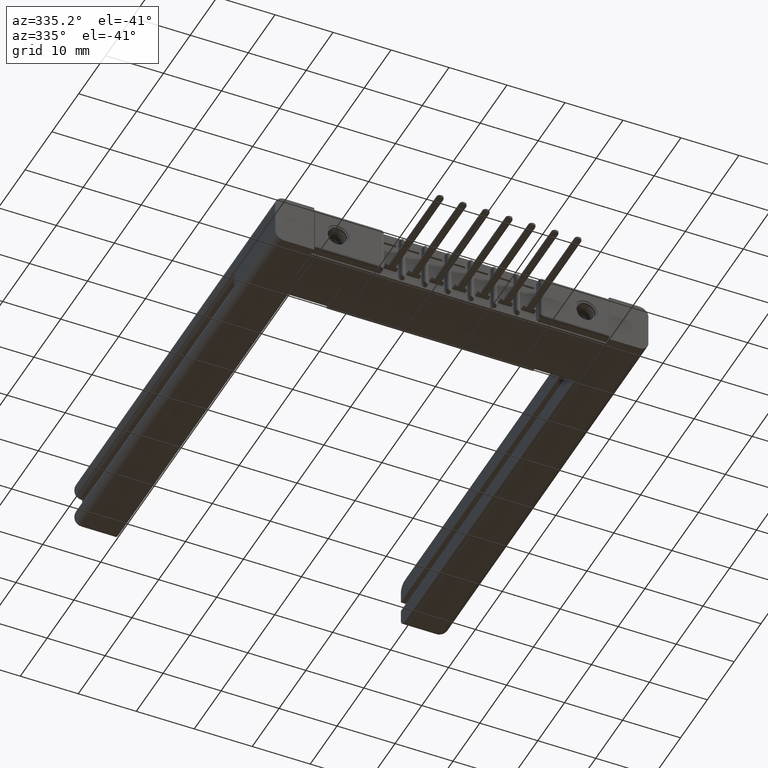
[diagram: clean part render]
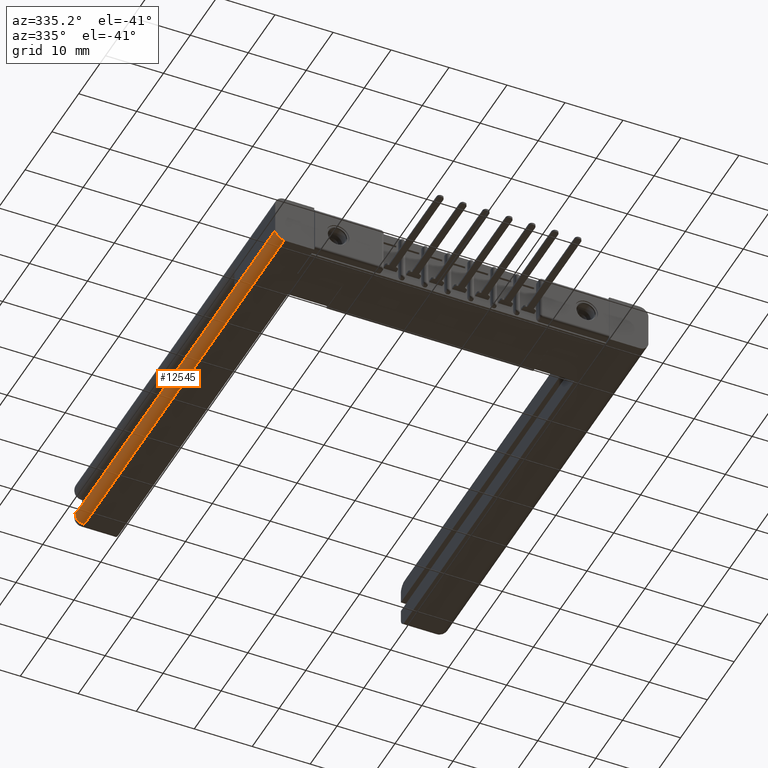
[diagram: same view with one face highlighted and labeled with its STEP entity id]
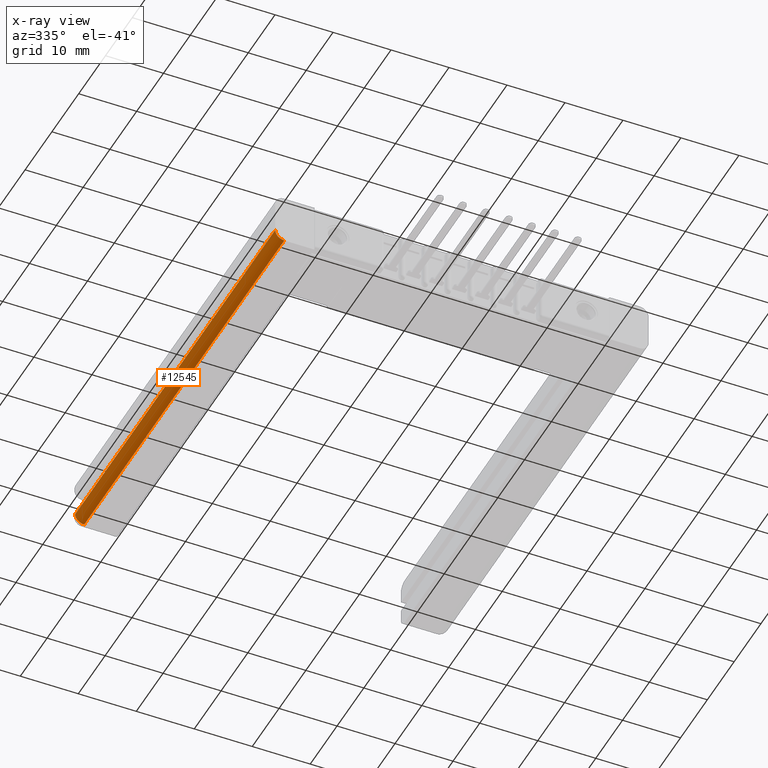
[diagram: x-ray of the same camera — body ghosted, the highlighted face saturated]
A machine part, auxiliary view. The second image highlights one B-rep face of the part: STEP entity #12545.
The next image is the same camera in x-ray: the body ghosted, the highlighted face saturated — about 0% of this face is hidden behind the body in this view.
In plain terms, the highlighted cylindrical surface (edge-blend (fillet) strip) has radius 1.5621 mm, axis along (-0, -1, 0).
Its self-contained STEP definition (entity closure, byte-faithful):
#744 = CIRCLE ( 'NONE', #3026, 0.06150000000000035300 ) ;
#884 = CARTESIAN_POINT ( 'NONE',  ( 0.0000000000000000000, 6.936332796413168713E-17, -0.2785000000000017462 ) ) ;
#896 = EDGE_CURVE ( 'NONE', #2306, #6516, #3326, .T. ) ;
#1560 = AXIS2_PLACEMENT_3D ( 'NONE', #7011, #7790, #2037 ) ;
#1706 = AXIS2_PLACEMENT_3D ( 'NONE', #1887, #9807, #9877 ) ;
#1887 = CARTESIAN_POINT ( 'NONE',  ( 0.06150000000000015177, 1.109813247426106994E-16, -0.2785000000000017462 ) ) ;
#2037 = DIRECTION ( 'NONE',  ( 0.0000000000000000000, 2.334284690065025195E-16, -1.000000000000000000 ) ) ;
#2295 = EDGE_CURVE ( 'NONE', #12080, #2306, #8581, .T. ) ;
#2306 = VERTEX_POINT ( 'NONE', #9609 ) ;
#2500 = LINE ( 'NONE', #5715, #2521 ) ;
#2521 = VECTOR ( 'NONE', #7863, 39.37007874015748143 ) ;
#2921 = EDGE_CURVE ( 'NONE', #4115, #12080, #9858, .T. ) ;
#3026 = AXIS2_PLACEMENT_3D ( 'NONE', #4022, #11013, #9806 ) ;
#3248 = VERTEX_POINT ( 'NONE', #6952 ) ;
#3252 = EDGE_CURVE ( 'NONE', #4115, #3248, #2500, .T. ) ;
#3326 = LINE ( 'NONE', #7478, #7793 ) ;
#3984 = CARTESIAN_POINT ( 'NONE',  ( 0.0000000000000000000, 6.936332796413168713E-17, -0.2785000000000017462 ) ) ;
#4022 = CARTESIAN_POINT ( 'NONE',  ( 0.06150000000000370448, 2.940000000000007052, -0.2785000000000021902 ) ) ;
#4115 = VERTEX_POINT ( 'NONE', #9064 ) ;
#4136 = DIRECTION ( 'NONE',  ( -7.120336040201873227E-16, -1.000000000000000000, 2.334284690065039986E-16 ) ) ;
#5715 = CARTESIAN_POINT ( 'NONE',  ( 0.0000000000000000000, 6.936332796413168713E-17, -0.2785000000000017462 ) ) ;
#5931 = ORIENTED_EDGE ( 'NONE', *, *, #3252, .T. ) ;
#6516 = VERTEX_POINT ( 'NONE', #9848 ) ;
#6952 = CARTESIAN_POINT ( 'NONE',  ( 3.551402391763542381E-15, 2.940000000000007052, -0.2785000000000026343 ) ) ;
#7011 = CARTESIAN_POINT ( 'NONE',  ( 0.06150000000000015177, 1.109813247426106994E-16, -0.2785000000000017462 ) ) ;
#7355 = EDGE_LOOP ( 'NONE', ( #5931, #11961, #9411, #12147, #7738 ) ) ;
#7478 = CARTESIAN_POINT ( 'NONE',  ( 0.06150000000000015177, 1.248539903354370368E-16, -0.3400000000000018563 ) ) ;
#7738 = ORIENTED_EDGE ( 'NONE', *, *, #2921, .F. ) ;
#7790 = DIRECTION ( 'NONE',  ( -7.120336040201873227E-16, -1.000000000000000000, 2.334284690065039986E-16 ) ) ;
#7793 = VECTOR ( 'NONE', #12394, 39.37007874015748143 ) ;
#7863 = DIRECTION ( 'NONE',  ( 7.120336040201873227E-16, 1.000000000000000000, -2.334284690065039986E-16 ) ) ;
#8453 = FACE_OUTER_BOUND ( 'NONE', #7355, .T. ) ;
#8581 = CIRCLE ( 'NONE', #1706, 0.06150000000000035300 ) ;
#9064 = CARTESIAN_POINT ( 'NONE',  ( 0.0000000000000000000, 0.5999999999999998668, -0.2785000000000021902 ) ) ;
#9243 = EDGE_CURVE ( 'NONE', #3248, #6516, #744, .T. ) ;
#9411 = ORIENTED_EDGE ( 'NONE', *, *, #896, .F. ) ;
#9609 = CARTESIAN_POINT ( 'NONE',  ( 0.06150000000000015177, 1.248539903354370368E-16, -0.3400000000000018563 ) ) ;
#9806 = DIRECTION ( 'NONE',  ( 0.0000000000000000000, 0.0000000000000000000, 1.000000000000000000 ) ) ;
#9807 = DIRECTION ( 'NONE',  ( -7.076409657662517778E-16, -1.000000000000000000, 2.334284690065039493E-16 ) ) ;
#9848 = CARTESIAN_POINT ( 'NONE',  ( 0.06150000000000370448, 2.940000000000007052, -0.3400000000000031886 ) ) ;
#9858 = LINE ( 'NONE', #884, #12251 ) ;
#9877 = DIRECTION ( 'NONE',  ( 1.000000000000000000, 7.164262422741189232E-16, 0.0000000000000000000 ) ) ;
#10490 = CYLINDRICAL_SURFACE ( 'NONE', #1560, 0.06150000000000035300 ) ;
#11013 = DIRECTION ( 'NONE',  ( -7.120336040201873227E-16, -1.000000000000000000, 2.334284690065039986E-16 ) ) ;
#11961 = ORIENTED_EDGE ( 'NONE', *, *, #9243, .T. ) ;
#12080 = VERTEX_POINT ( 'NONE', #3984 ) ;
#12147 = ORIENTED_EDGE ( 'NONE', *, *, #2295, .F. ) ;
#12251 = VECTOR ( 'NONE', #4136, 39.37007874015748143 ) ;
#12394 = DIRECTION ( 'NONE',  ( 7.120336040201873227E-16, 1.000000000000000000, -2.334284690065039986E-16 ) ) ;
#12545 = ADVANCED_FACE ( 'NONE', ( #8453 ), #10490, .T. ) ;